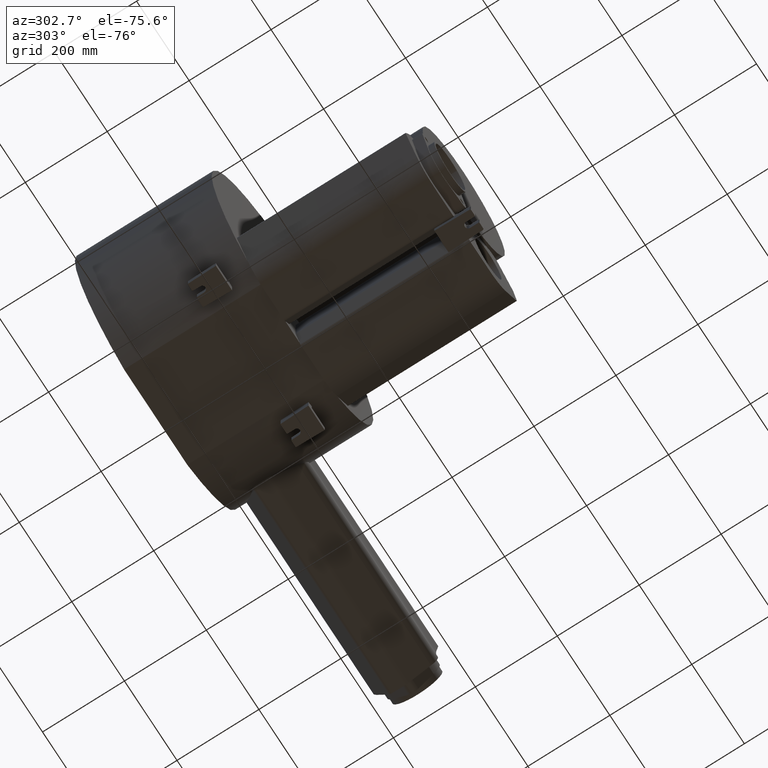
[diagram: clean part render]
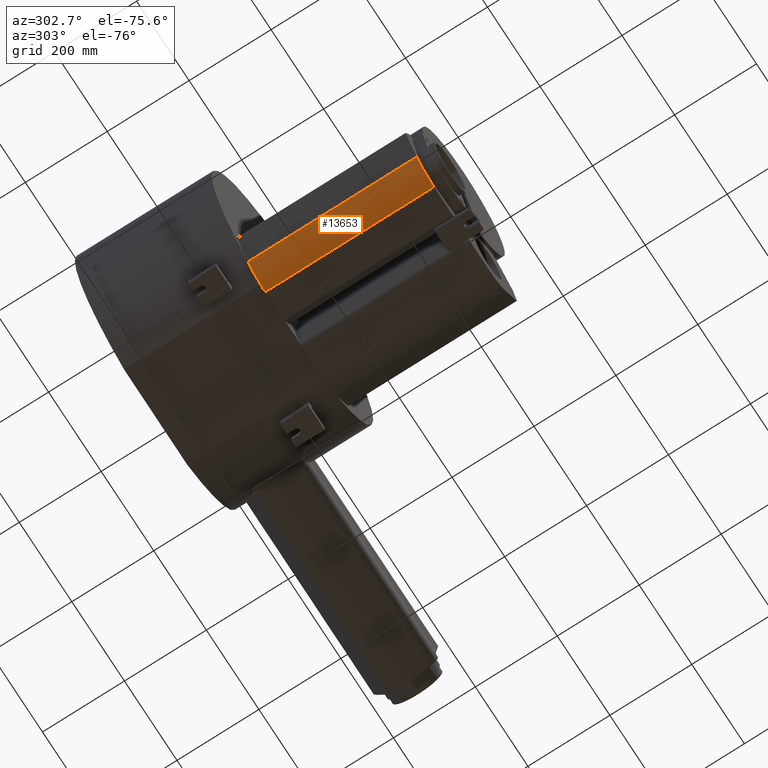
[diagram: same view with one face highlighted and labeled with its STEP entity id]
A machine part, auxiliary view. The second image highlights one B-rep face of the part: STEP entity #13653.
In plain terms, the highlighted cylindrical surface (partial cylindrical patch) has radius 82.2052 mm, axis along (-0, -1, 0).
Its self-contained STEP definition (entity closure, byte-faithful):
#93=CIRCLE('',#14357,82.2051908248754);
#148=CIRCLE('',#14483,82.2051908248754);
#252=CYLINDRICAL_SURFACE('',#14482,82.2051908248754);
#1290=FACE_OUTER_BOUND('',#2067,.T.);
#2067=EDGE_LOOP('',(#9426,#9427,#9428,#9429));
#2999=LINE('',#19174,#4268);
#3000=LINE('',#19175,#4269);
#4268=VECTOR('',#15780,412.);
#4269=VECTOR('',#15781,412.);
#5451=VERTEX_POINT('',#18638);
#5452=VERTEX_POINT('',#18640);
#5571=VERTEX_POINT('',#19171);
#5572=VERTEX_POINT('',#19172);
#6853=EDGE_CURVE('',#5451,#5452,#93,.T.);
#7023=EDGE_CURVE('',#5571,#5572,#148,.T.);
#7024=EDGE_CURVE('',#5572,#5452,#2999,.T.);
#7025=EDGE_CURVE('',#5571,#5451,#3000,.T.);
#9426=ORIENTED_EDGE('',*,*,#7023,.T.);
#9427=ORIENTED_EDGE('',*,*,#7024,.T.);
#9428=ORIENTED_EDGE('',*,*,#6853,.F.);
#9429=ORIENTED_EDGE('',*,*,#7025,.F.);
#13653=ADVANCED_FACE('',(#1290),#252,.T.);
#14357=AXIS2_PLACEMENT_3D('',#18641,#15432,#15433);
#14482=AXIS2_PLACEMENT_3D('',#19170,#15776,#15777);
#14483=AXIS2_PLACEMENT_3D('',#19173,#15778,#15779);
#15432=DIRECTION('center_axis',(-2.7755575615627E-17,-1.,5.64283143708145E-15));
#15433=DIRECTION('ref_axis',(-0.798642559940164,-3.37372115570068E-15,-0.601805667514208));
#15776=DIRECTION('center_axis',(-2.7755575615627E-17,-1.,5.64283143708145E-15));
#15777=DIRECTION('ref_axis',(-0.798642559940164,-3.37372115570068E-15,-0.601805667514208));
#15778=DIRECTION('center_axis',(-2.7755575615627E-17,-1.,5.64283143708145E-15));
#15779=DIRECTION('ref_axis',(-0.798642559940164,-3.37372115570068E-15,-0.601805667514208));
#15780=DIRECTION('',(-2.7755575615627E-17,-1.,5.64283143708145E-15));
#15781=DIRECTION('',(-2.7755575615627E-17,-1.,5.64283143708145E-15));
#18638=CARTESIAN_POINT('',(-196.98101719962,-496.984342737877,-542.924924561657));
#18640=CARTESIAN_POINT('',(-131.329416156005,-496.984342737878,-575.658565643395));
#18641=CARTESIAN_POINT('Origin',(-131.328453158871,-496.984342737877,-493.45337482416));
#19170=CARTESIAN_POINT('Origin',(-131.328453158871,-84.984342737877,-493.453374824162));
#19171=CARTESIAN_POINT('',(-196.981017199619,-84.9843427378773,-542.92492456166));
#19172=CARTESIAN_POINT('',(-131.329416156005,-84.9843427378775,-575.658565643397));
#19173=CARTESIAN_POINT('Origin',(-131.328453158871,-84.984342737877,-493.453374824162));
#19174=CARTESIAN_POINT('',(-131.329416156005,-84.9843427378775,-575.658565643397));
#19175=CARTESIAN_POINT('',(-196.981017199619,-84.9843427378773,-542.92492456166));